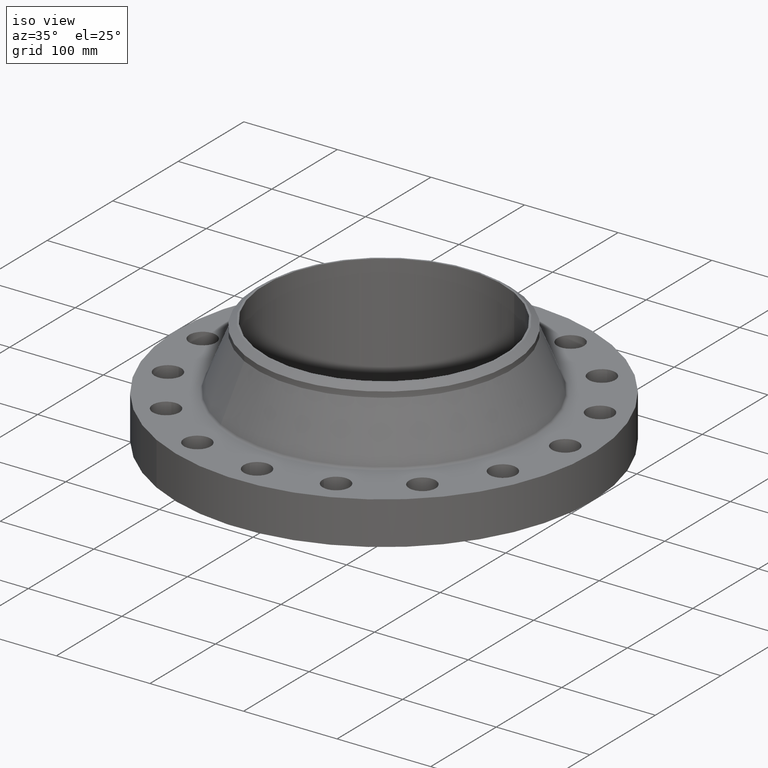
[diagram: clean part render]
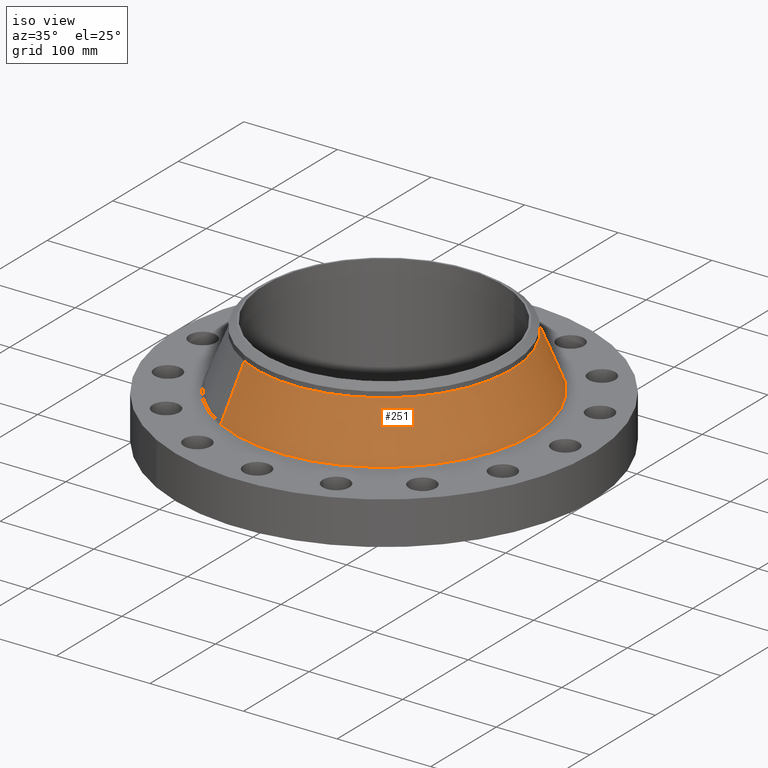
[diagram: same view with one face highlighted and labeled with its STEP entity id]
A machine part, iso view. The second image highlights one B-rep face of the part: STEP entity #251.
In plain terms, the highlighted conical surface has half-angle 22.174 deg.
Its self-contained STEP definition (entity closure, byte-faithful):
#187=AXIS2_PLACEMENT_3D('Circle Axis2P3D',#185,#186,$) ;
#224=AXIS2_PLACEMENT_3D('Cone Axis2P3D',#221,#222,#223) ;
#235=AXIS2_PLACEMENT_3D('Circle Axis2P3D',#233,#234,$) ;
#182=CARTESIAN_POINT('Vertex',(3.01057719643,5.51082459333,1.88470955808)) ;
#185=CARTESIAN_POINT('Axis2P3D Location',(0.,0.,1.88470955808)) ;
#189=CARTESIAN_POINT('Vertex',(-3.01057719643,-5.51082459333,1.88470955808)) ;
#221=CARTESIAN_POINT('Axis2P3D Location',(0.,0.,4.10412462484)) ;
#226=CARTESIAN_POINT('Line Origine',(2.79374473322,5.11391543175,2.99441709146)) ;
#230=CARTESIAN_POINT('Vertex',(2.57691227001,4.71700627018,4.10412462484)) ;
#233=CARTESIAN_POINT('Axis2P3D Location',(0.,0.,4.10412462484)) ;
#237=CARTESIAN_POINT('Vertex',(-2.57691227001,-4.71700627018,4.10412462484)) ;
#240=CARTESIAN_POINT('Line Origine',(-2.79374473322,-5.11391543175,2.99441709146)) ;
#186=DIRECTION('Axis2P3D Direction',(0.,0.,-0.0393700787402)) ;
#222=DIRECTION('Axis2P3D Direction',(0.,0.,-0.0393700787402)) ;
#223=DIRECTION('Axis2P3D XDirection',(-0.0188750212049,-0.0345504945626,0.)) ;
#227=DIRECTION('Vector Direction',(0.00712381709834,0.0130400597302,-0.0364583484567)) ;
#234=DIRECTION('Axis2P3D Direction',(0.,0.,-0.0393700787402)) ;
#241=DIRECTION('Vector Direction',(-0.00712381709834,-0.0130400597302,-0.0364583484567)) ;
#228=VECTOR('Line Direction',#227,0.0393700787402) ;
#242=VECTOR('Line Direction',#241,0.0393700787402) ;
#246=ORIENTED_EDGE('',*,*,#191,.F.) ;
#247=ORIENTED_EDGE('',*,*,#232,.T.) ;
#248=ORIENTED_EDGE('',*,*,#239,.T.) ;
#249=ORIENTED_EDGE('',*,*,#244,.F.) ;
#251=ADVANCED_FACE('PartBody',(#250),#225,.T.) ;
#188=CIRCLE('generated circle',#187,6.27955115865) ;
#236=CIRCLE('generated circle',#235,5.37500000002) ;
#225=CONICAL_SURFACE('Cone',#224,5.37500000002,0.387009036457) ;
#191=EDGE_CURVE('',#183,#190,#188,.T.) ;
#232=EDGE_CURVE('',#183,#231,#229,.F.) ;
#239=EDGE_CURVE('',#231,#238,#236,.T.) ;
#244=EDGE_CURVE('',#190,#238,#243,.F.) ;
#245=EDGE_LOOP('',(#246,#247,#248,#249)) ;
#250=FACE_OUTER_BOUND('',#245,.T.) ;
#229=LINE('Line',#226,#228) ;
#243=LINE('Line',#240,#242) ;
#183=VERTEX_POINT('',#182) ;
#190=VERTEX_POINT('',#189) ;
#231=VERTEX_POINT('',#230) ;
#238=VERTEX_POINT('',#237) ;